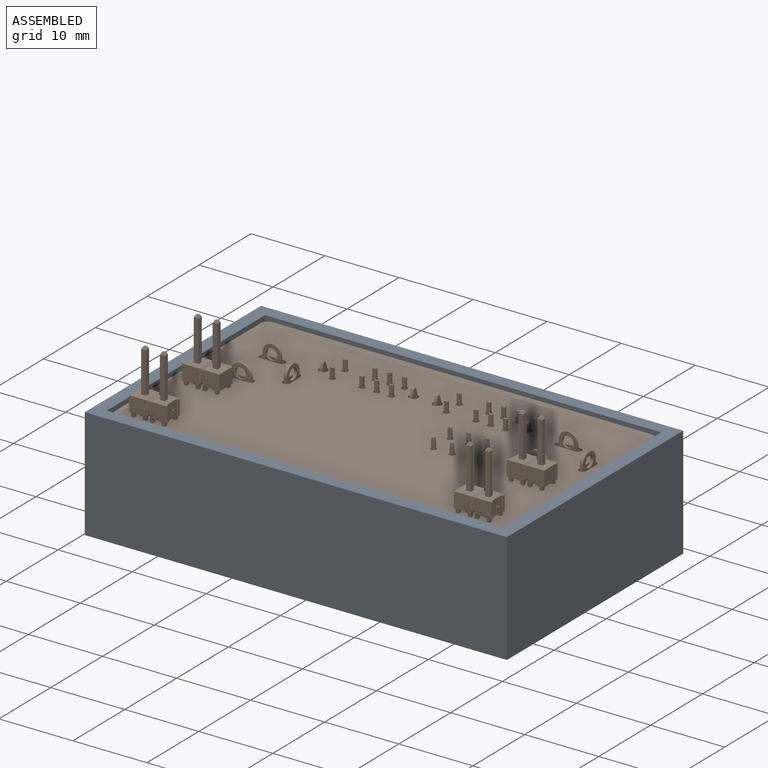
[diagram: assembled view]
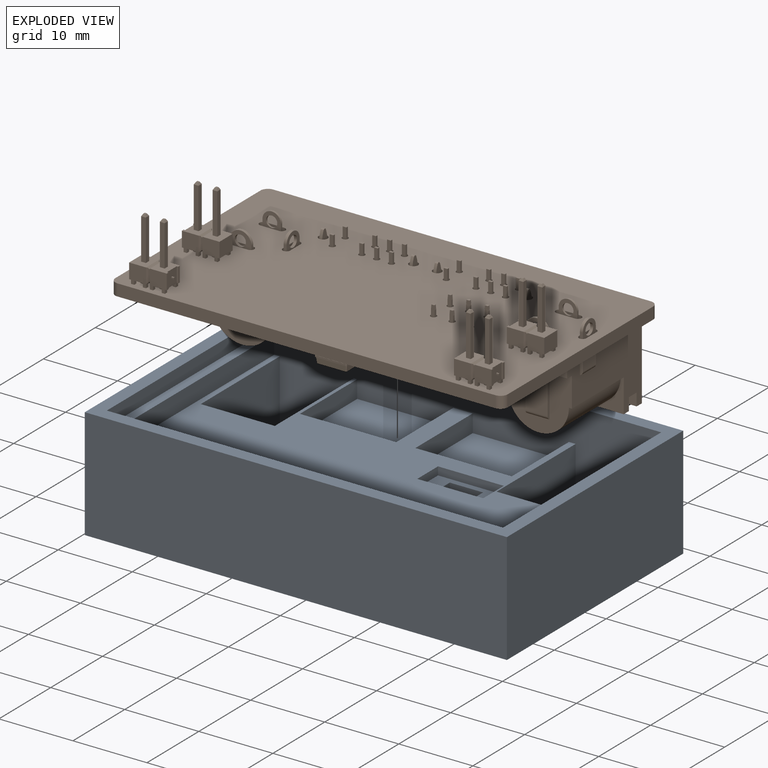
[diagram: exploded view]
GUIDED TOUR — FREECAD ASSEMBLY "Assembly2"

This assembly has 2 components, labeled P0..P1 below (a component is one placed body or linked part; the same part can appear more than once), held together by 0 modeled joints plus 1 derived contact edge. A joint is a constraint between two components; its type names the relative motion it leaves free:
  CONTACT — a derived adjacency edge — the two components touch in the source model (clearance under 2% of the assembly's diagonal); it is measured from the geometry, not a modeled constraint.
Axis/direction vectors are unit vectors and 'through' points are millimeter coordinates, both in the assembly's world frame.

MATES
  1. CONTACT "contact_0_1": P0 <-> P1, contact direction (0.000, 0.000, 1.000) through (25.51, 15.13, 12.98) mm (derived from contact, not a modeled constraint)

ASSEMBLY ORDER
  1. P0 — the base component [order heuristic]
  2. P1 [order heuristic]
Order-tag legend:
  [order heuristic] — this assembly is geometrically interlocked (no collision-free removal order exists), so components are listed in mate-graph order; insertion feasibility is not verified.

Of the 2 components, 1 carries a construction recipe — the FreeCAD feature program (sketches with constraints, then the solid features that consume them) that regenerates the part from scratch, quoted from this document or from the linked companion document it references; the rest are supplied as boundary geometry only. The tour below walks the components in assembly order: each is shown spotlighted twice — in the assembled view, then in the exploded view, where a leader line traces a displaced component back to its assembled socket (components that stay in place when exploded have no leader line; saturated green if recipe-attached, orange if geometry-only; every other component desaturated gray) — followed by its recipe or geometry summary and the mates that hold it.
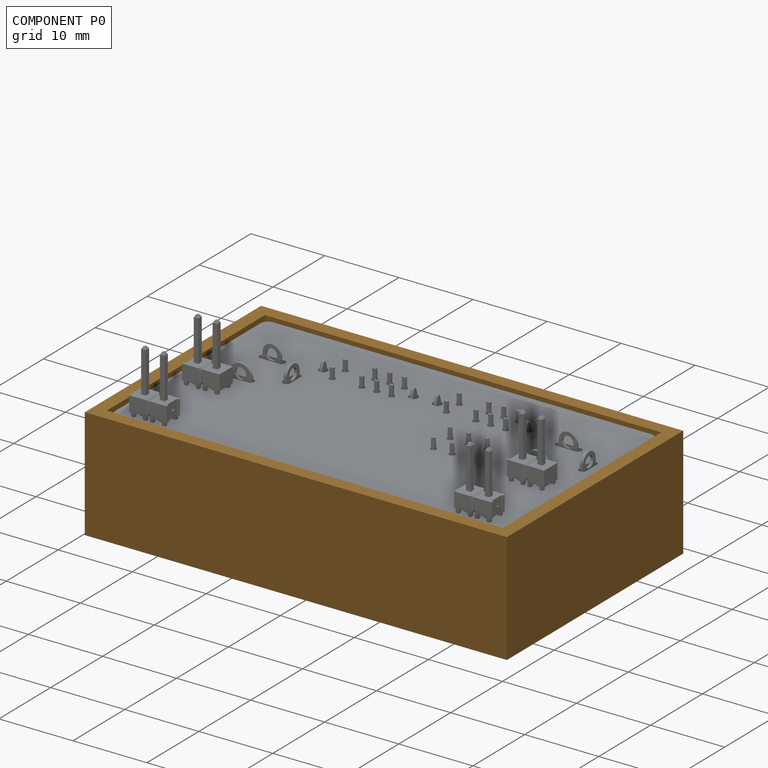
[diagram: component P0 — assembled]
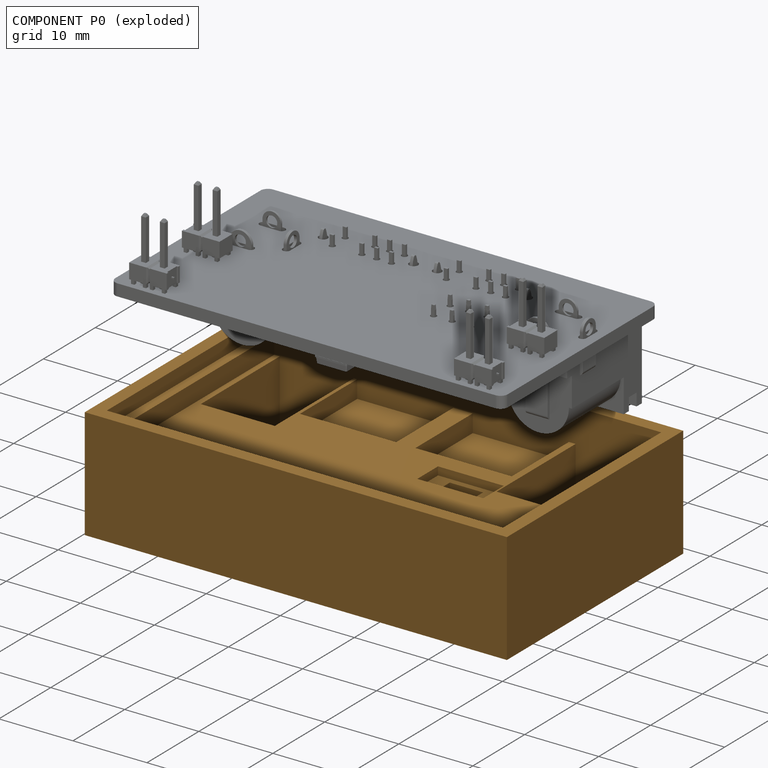
[diagram: component P0 — exploded]
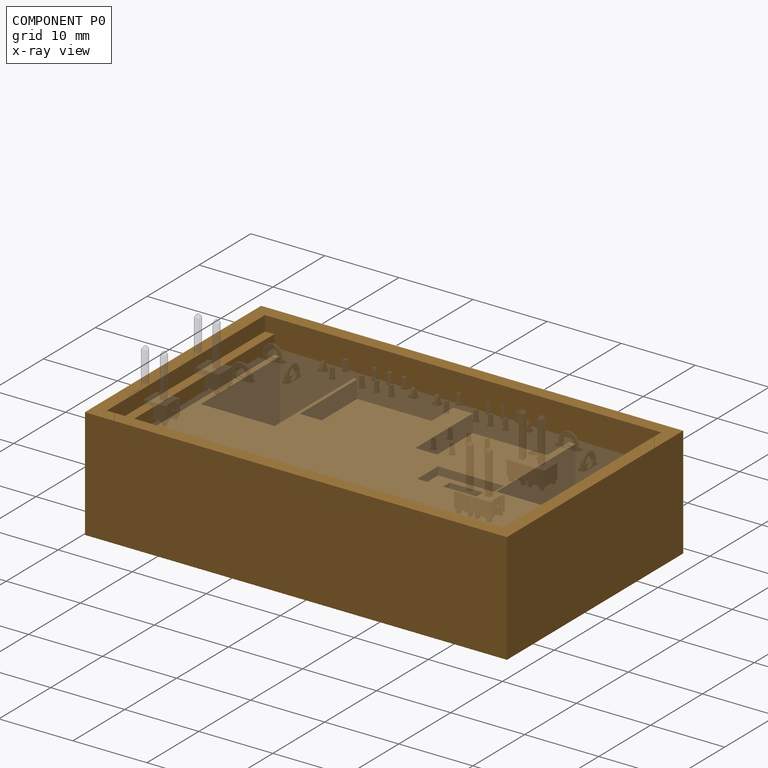
[diagram: component P0 — x-ray view]
COMPONENT P0 — geometry summary ("Body"; no construction recipe available for this part):
  bounding box: 57.0 x 34.0 x 15.0 mm
  tessellated surface: 156 triangles
  volume: 18628 mm^3 (64% of its bounding box)
Held by: resting contact with P1 (derived edge).
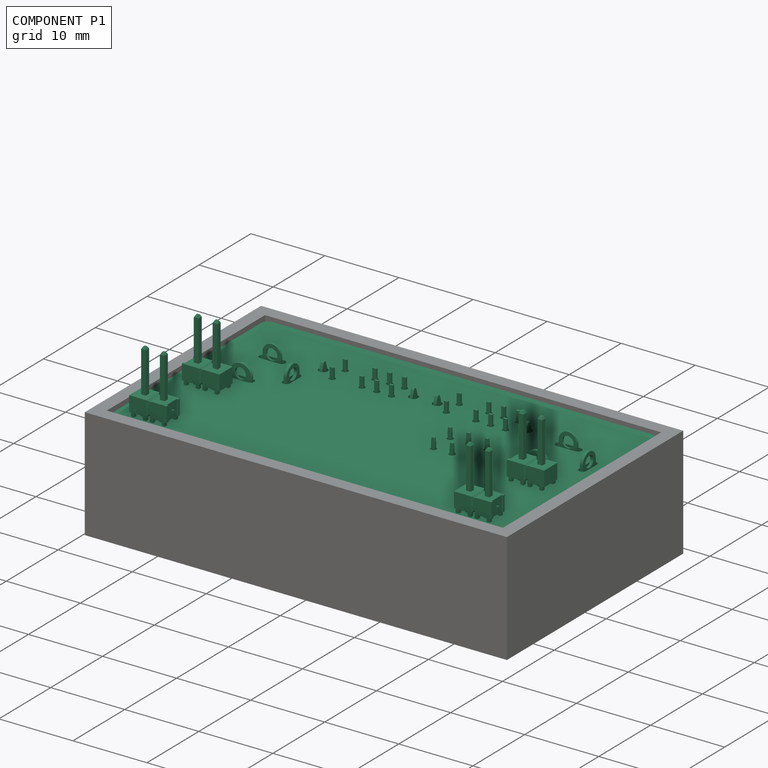
[diagram: component P1 — assembled]
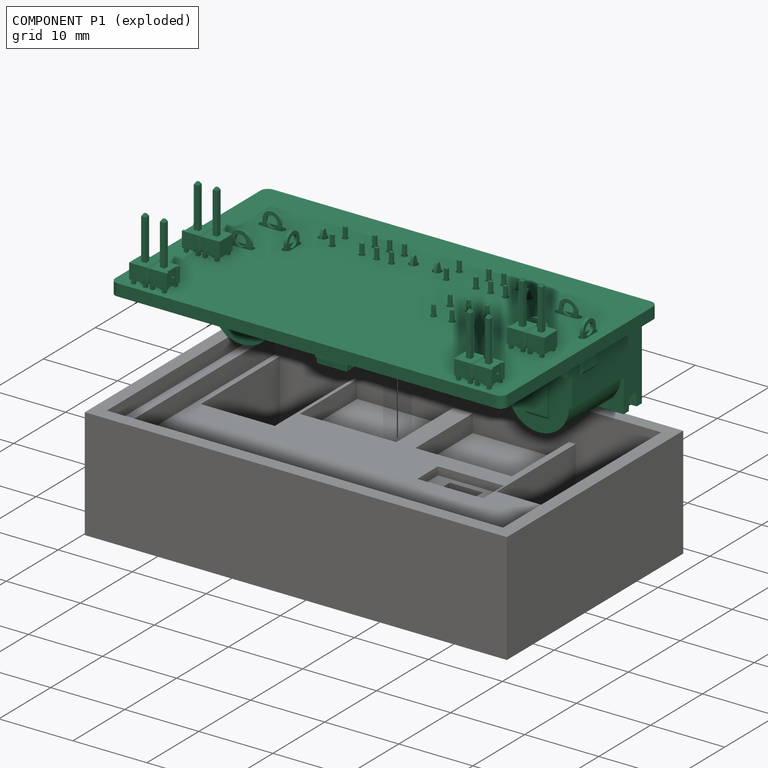
[diagram: component P1 — exploded]
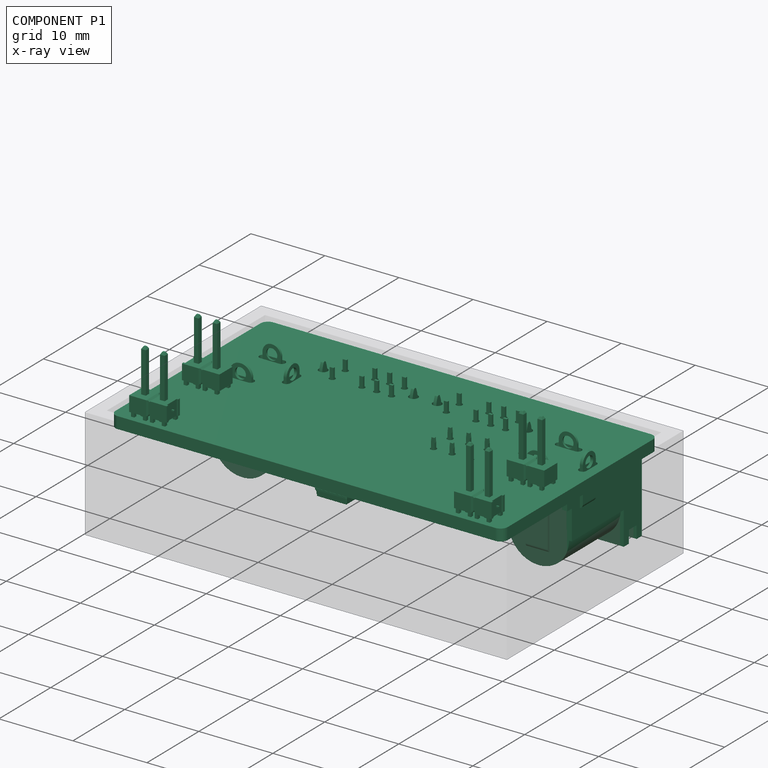
[diagram: component P1 — x-ray view]
COMPONENT P1 — recipe-attached ("breadboard-power-supply", a linked part whose construction recipe lives in a companion FreeCAD document of the same project; that document's serialized recipe follows).
Held by: resting contact with P0 (derived edge).
Construction recipe (the companion document, serialized — sketch geometry with constraints, then the solid features built on it; lengths are millimeters unless a unit is written):

FCSTD DOCUMENT  (FreeCAD 1.0R39109 (Git))
Label: breadboard-power-supply
License: All rights reserved
LicenseURL: https://en.wikipedia.org/wiki/All_rights_reserved
objects: Part::Feature×27, App::Part×13, App::Link×11, PartDesign::CoordinateSystem×1, Sketcher::SketchObject×1
note: 30 computed .brp shape members not serialized (recipe doc carries the construction recipe); baked Part::Feature solids carry a one-line shape summary decoded from their .brp

FEATURE [PartDesign::CoordinateSystem] Local_CS_8d0f
  AttacherType = Attacher::AttachEngine3D
  MapMode = 2
FEATURE [Part::Feature] Pcb_8d0f
  shape: bbox 53 x 30 x 1.6 mm, 80 faces (baked)
FEATURE [Sketcher::SketchObject] PCB_Sketch_8d0f
  ArcFitTolerance = 1e-06
  FullyConstrained = false
  MakeInternals = false
  sketch-geometry (8):
    g0: LineSegment StartX=101 StartY=-90 StartZ=0 EndX=152 EndY=-90 EndZ=0
    g1: LineSegment StartX=152 StartY=-120 StartZ=0 EndX=101 EndY=-120 EndZ=0
    g2: LineSegment StartX=100 StartY=-119 StartZ=0 EndX=100 EndY=-91 EndZ=0
    g3: LineSegment StartX=153 StartY=-91 StartZ=0 EndX=153 EndY=-119 EndZ=0
    g4: ArcOfCircle CenterX=152 CenterY=-91 CenterZ=0 NormalX=0 NormalY=0 NormalZ=-1 AngleXU=1.5708 Radius=0.999999 StartAngle=0 EndAngle=1.5708
    g5: ArcOfCircle CenterX=101 CenterY=-119 CenterZ=0 NormalX=0 NormalY=0 NormalZ=-1 AngleXU=-1.5708 Radius=0.999999 StartAngle=0 EndAngle=1.5708
    g6: ArcOfCircle CenterX=101 CenterY=-91 CenterZ=0 NormalX=0 NormalY=0 NormalZ=-1 AngleXU=-7.47076e-07 Radius=0.999999 StartAngle=0 EndAngle=1.5708
    g7: ArcOfCircle CenterX=152 CenterY=-119 CenterZ=0 NormalX=0 NormalY=0 NormalZ=-1 AngleXU=3.14159 Radius=0.999999 StartAngle=0 EndAngle=1.5708
  constraints (8):
    c: Coincident(g2,g5)
    c: Coincident(g2,g6)
    c: Coincident(g1,g5)
    c: Coincident(g0,g6)
    c: Coincident(g1,g7)
    c: Coincident(g0,g4)
    c: Coincident(g3,g7)
    c: Coincident(g3,g4)
FEATURE [App::Part] Board_Geoms_8d0f
  Group = -> [Pcb_8d0f,PCB_Sketch_8d0f]
  Origin = -> Origin
FEATURE [Part::Feature] Part__Feature  label="LF 736"
  Placement = pos=(1.69926,2.64276,4.10843) rot=(0,0,1;0rad)
  shape: bbox 1.62 x 1.275 x 1.5 mm, 25 faces (baked)
FEATURE [Part::Feature] Part__Feature001  label="LF 737"
  Placement = pos=(1.69926,2.64276,4.10843) rot=(0,0,1;0rad)
  shape: bbox 3.12 x 1.275 x 1.78 mm, 27 faces (baked)
FEATURE [App::Part] LF_736  label="LF 738"
  Group = -> [Part__Feature,Part__Feature001]
  Origin = -> Origin008
FEATURE [Part::Feature] Part__Feature002  label="Die 35mil 270um"
  Placement = pos=(1.69926,2.97276,4.10843) rot=(1,0,0;1.5708rad)
  shape: bbox 0.89 x 0.3 x 0.89 mm, 6 faces (baked)
FEATURE [Part::Feature] Part__Feature003  label="Clip553 670"
  Placement = pos=(1.69926,3.15276,4.10843) rot=(0,0,1;0rad)
  shape: bbox 2.25 x 0.704 x 1.5 mm, 32 faces (baked)
FEATURE [Part::Feature] Part__Feature004  label="Áã¼þ2^B1100"
  Placement = pos=(1.69926,2.64276,4.10843) rot=(-1,0,0;1.5708rad)
  shape: bbox 0.91 x 0.03 x 0.91 mm, 6 faces (baked)
FEATURE [Part::Feature] Part__Feature005  label="Áã¼þ2^B1101"
  Placement = pos=(1.69926,2.64276,4.10843) rot=(-1,0,0;1.5708rad)
  shape: bbox 0.46 x 0.03 x 0.46 mm, 6 faces (baked)
FEATURE [Part::Feature] Part__Feature006  label="Áã¼þ2^B1102"
  Placement = pos=(1.69926,2.64276,4.10843) rot=(-1,0,0;1.5708rad)
  shape: bbox 0.3846 x 0.205 x 1.2 mm, 8 faces (baked)
FEATURE [App::Part] ________2_B1100  label="Áã¼þ2^B1103"
  Group = -> [Part__Feature004,Part__Feature005,Part__Feature006]
  Origin = -> Origin009
FEATURE [Part::Feature] Part__Feature007  label="SMA Compound 736 553 670"
  Placement = pos=(-0.14074,2.63876,2.70843) rot=(-1,0,0;1.5708rad)
  shape: bbox 4.301 x 2 x 2.8 mm, 146 faces (baked)
FEATURE [App::Part] new_SMA_20R  label="D2_new SMA 20R_0952939a186b"
  Group = -> [LF_736,Part__Feature002,Part__Feature003,________2_B1100,Part__Feature007]
  Origin = -> Origin010
  Placement = pos=(128.39,-107.8,-1.6) rot=(0.57735,0.57735,0.57735;2.0944rad)
FEATURE [Part::Feature] Part__Feature008  label="EG1271--3DModel-STEP-520916"
  Placement = pos=(-0.95,3.3,1e-16) rot=(-1,0,0;1.5708rad)
  shape: bbox 8.5 x 8.5 x 3.6 mm, 203 faces (baked)
FEATURE [App::Part] EG1271  label="SW1_EG1271_2816c8904585"
  Group = -> [Part__Feature008]
  Origin = -> Origin011
  Placement = pos=(116,-105.3,0) rot=(1,0,0;1.5708rad)
FEATURE [Part::Feature] Part__Feature009  label="C0805C104K5RACTU"
  shape: bbox 2.3 x 0.98 x 1.55 mm, 58 faces (baked)
FEATURE [Part::Feature] Part__Feature010  label="C0805C104K5RACTU001"
  shape: bbox 0.2279 x 0.005 x 0.4313 mm, 19 faces (baked)
FEATURE [Part::Feature] Part__Feature011  label="C0805C104K5RACTU002"
  shape: bbox 0.2279 x 0.005 x 0.5256 mm, 25 faces (baked)
FEATURE [Part::Feature] Part__Feature012  label="C0805C104K5RACTU003"
  shape: bbox 0.2279 x 0.005 x 0.2743 mm, 13 faces (baked)
FEATURE [App::Part] C0805C104K5RACTU  label="C1_C0805C104K5RACTU004_20f41c0f8bfd"
  Group = -> [Part__Feature009,Part__Feature010,Part__Feature011,Part__Feature012]
  Origin = -> Origin012
  Placement = pos=(120.9,-103.75,0) rot=(0.57735,-0.57735,-0.57735;2.0944rad)
FEATURE [App::Link] D2_new_SMA_20R_0952939a186b_ln_  label="D1_new SMA 20R_7dfb9a78bb62"
  LinkPlacement = pos=(122.5,-108.69,-1.6) rot=(1,0,0;1.5708rad)
  LinkedObject = -> new_SMA_20R
  Placement = pos=(122.5,-108.69,-1.6) rot=(1,0,0;1.5708rad)
FEATURE [Part::Feature] Shape  label="SW3_EG2315_80b6656eb97f"
  Placement = pos=(134.2,-97.05,-3) rot=(0,0,1;3.14159rad)
  shape: bbox 12.6 x 10.3 x 7.8 mm, 150 faces (baked)
FEATURE [Part::Feature] Part__Feature013  label="RCS0805120RFKEA"
  shape: bbox 1.95 x 0.45 x 1.25 mm, 6 faces (baked)
FEATURE [Part::Feature] Part__Feature014  label="RCS0805120RFKEA001"
  shape: bbox 1.4 x 0.025 x 1.25 mm, 6 faces (baked)
FEATURE [Part::Feature] Part__Feature015  label="RCS0805120RFKEA002"
  shape: bbox 0.3 x 0.5 x 1.25 mm, 14 faces (baked)
FEATURE [Part::Feature] Part__Feature016  label="RCS0805120RFKEA003"
  shape: bbox 0.3 x 0.5 x 1.25 mm, 14 faces (baked)
FEATURE [App::Part] RCS0805120RFKEA  label="R2_RCS0805120RFKEA004_a3deb157f018"
  Group = -> [Part__Feature013,Part__Feature014,Part__Feature015,Part__Feature016]
  Origin = -> Origin013
  Placement = pos=(113.87,-101.6,0) rot=(0,0.707107,0.707107;3.14159rad)
FEATURE [App::Link] C1_C0805C104K5RACTU004_20f41c0f8bfd_ln_  label="C3_C0805C104K5RACTU004_ad2479d6b090"
  LinkPlacement = pos=(136.3,-104.05,0) rot=(0.57735,0.57735,0.57735;2.0944rad)
  LinkedObject = -> C0805C104K5RACTU
  Placement = pos=(136.3,-104.05,0) rot=(0.57735,0.57735,0.57735;2.0944rad)
FEATURE [App::Link] R2_RCS0805120RFKEA004_a3deb157f018_ln_  label="R1_RCS0805120RFKEA004_754ceaad8c13"
  LinkPlacement = pos=(135.5,-107.45,0) rot=(0.57735,0.57735,0.57735;2.0944rad)
  LinkedObject = -> RCS0805120RFKEA
  Placement = pos=(135.5,-107.45,0) rot=(0.57735,0.57735,0.57735;2.0944rad)
FEATURE [Part::Feature] Shape001  label="J1_CUI_DEVICES_PJ-002A_55e8efef0c78"
  Placement = pos=(106.5,-90.3,6.5) rot=(0.57735,0.57735,0.57735;2.0944rad)
  shape: bbox 9.4 x 14.4 x 14.5 mm, 57 faces (baked)
FEATURE [App::Link] SW3_EG2315_80b6656eb97f_ln_  label="SW2_EG2315_f7c61ab64d1e"
  LinkPlacement = pos=(118.8,-97.05,-3) rot=(0,0,1;3.14159rad)
  LinkedObject = -> Shape
  Placement = pos=(118.8,-97.05,-3) rot=(0,0,1;3.14159rad)
FEATURE [Part::Feature] Part__Feature017  label="BODY-SOT"
  Placement = pos=(0,0,0.7874) rot=(0.57735,-0.57735,-0.57735;2.0944rad)
  shape: bbox 3.5 x 6.5 x 1.6 mm, 14 faces (baked)
FEATURE [Part::Feature] Part__Feature018  label="LEAD-SOT"
  Placement = pos=(-2.7498,-2.2438,0.25) rot=(0.57735,-0.57735,-0.57735;2.0944rad)
  shape: bbox 1.75 x 0.75 x 0.7874 mm, 14 faces (baked)
FEATURE [Part::Feature] Part__Feature019  label="LEAD-SOT001"
  Placement = pos=(-2.7498,0.0562,0.25) rot=(0.57735,-0.57735,-0.57735;2.0944rad)
  shape: bbox 1.75 x 0.75 x 0.7874 mm, 14 faces (baked)
FEATURE [Part::Feature] Part__Feature020  label="LEAD-SOT002"
  Placement = pos=(-2.7498,2.3562,0.25) rot=(0.57735,-0.57735,-0.57735;2.0944rad)
  shape: bbox 1.75 x 0.75 x 0.7874 mm, 14 faces (baked)
FEATURE [Part::Feature] Part__Feature021  label="LEAD-SOT-WIDE"
  Placement = pos=(2.7498,0.0026,0.25) rot=(0.57735,0.57735,0.57735;2.0944rad)
  shape: bbox 1.75 x 3 x 0.7874 mm, 14 faces (baked)
FEATURE [App::Part] DCY0004A_ASM  label="U1_DCY0004A_ASM_2dbe2f4dbc05"
  Group = -> [Part__Feature017,Part__Feature018,Part__Feature019,Part__Feature020,Part__Feature021]
  Origin = -> Origin014
  Placement = pos=(126.5,-105.8,0) rot=(0,0,-1;1.5708rad)
FEATURE [App::Link] R2_RCS0805120RFKEA004_a3deb157f018_ln_001  label="R3_RCS0805120RFKEA004_74bbc2b843f3"
  LinkPlacement = pos=(117.73,-101.6,0) rot=(1,0,0;1.5708rad)
  LinkedObject = -> RCS0805120RFKEA
  Placement = pos=(117.73,-101.6,0) rot=(1,0,0;1.5708rad)
FEATURE [App::Link] J1_CUI_DEVICES_PJ_002A_55e8efef0c78_ln_  label="J2_CUI_DEVICES_PJ-002A_d9c951ac5020"
  LinkPlacement = pos=(146.5,-90.3,6.5) rot=(0.57735,0.57735,0.57735;2.0944rad)
  LinkedObject = -> Shape001
  Placement = pos=(146.5,-90.3,6.5) rot=(0.57735,0.57735,0.57735;2.0944rad)
FEATURE [App::Link] C1_C0805C104K5RACTU004_20f41c0f8bfd_ln_001  label="C2_C0805C104K5RACTU004_f27700a97261"
  LinkPlacement = pos=(131.65,-110.7,0) rot=(0,0.707107,0.707107;3.14159rad)
  LinkedObject = -> C0805C104K5RACTU
  Placement = pos=(131.65,-110.7,0) rot=(0,0.707107,0.707107;3.14159rad)
FEATURE [App::Link] D2_new_SMA_20R_0952939a186b_ln_001  label="D3_new SMA 20R_0e3b2a965611"
  LinkPlacement = pos=(122.5,-112.69,-1.6) rot=(1,0,0;1.5708rad)
  LinkedObject = -> new_SMA_20R
  Placement = pos=(122.5,-112.69,-1.6) rot=(1,0,0;1.5708rad)
FEATURE [App::Part] Top_8d0f
  Group = -> [new_SMA_20R,EG1271,C0805C104K5RACTU,D2_new_SMA_20R_0952939a186b_ln_,Shape,RCS0805120RFKEA,C1_C0805C104K5RACTU004_20f41c0f8bfd_ln_,R2_RCS0805120RFKEA004_a3deb157f018_ln_,Shape001,SW3_EG2315_80b6656eb97f_ln_,DCY0004A_ASM,R2_RCS0805120RFKEA004_a3deb157f018_ln_001,J1_CUI_DEVICES_PJ_002A_55e8efef0c78_ln_,C1_C0805C104K5RACTU004_20f41c0f8bfd_ln_001,D2_new_SMA_20R_0952939a186b_ln_001]
  Origin = -> Origin003
FEATURE [Part::Feature] Part__Feature022  label="TSW-102-07-F-S_body"
  shape: bbox 5.207 x 2.54 x 2.54 mm, 69 faces (baked)
FEATURE [Part::Feature] Part__Feature023  label="T-1S6-07-TSW-1-07-2-S"
  Placement = pos=(0,-2.54,0) rot=(0,0,1;0rad)
  shape: bbox 3.429 x 10.92 x 0.889 mm, 38 faces (baked)
FEATURE [App::Part] TSW_102_07_F_S  label="J6_TSW-102-07-F-S_af2df57303ab"
  Group = -> [Part__Feature022,Part__Feature023]
  Origin = -> Origin015
  Placement = pos=(148.43,-117.97,-1.6) rot=(-1,0,0;1.5708rad)
FEATURE [App::Link] J6_TSW_102_07_F_S_af2df57303ab_ln_  label="J3_TSW-102-07-F-S_91d19b5af423"
  LinkPlacement = pos=(104.57,-107.81,-1.6) rot=(0,0.707107,-0.707107;3.14159rad)
  LinkedObject = -> TSW_102_07_F_S
  Placement = pos=(104.57,-107.81,-1.6) rot=(0,0.707107,-0.707107;3.14159rad)
FEATURE [App::Link] J6_TSW_102_07_F_S_af2df57303ab_ln_001  label="J4_TSW-102-07-F-S_3f57c38ca013"
  LinkPlacement = pos=(104.57,-117.97,-1.6) rot=(-1,0,0;1.5708rad)
  LinkedObject = -> TSW_102_07_F_S
  Placement = pos=(104.57,-117.97,-1.6) rot=(-1,0,0;1.5708rad)
FEATURE [App::Link] J6_TSW_102_07_F_S_af2df57303ab_ln_002  label="J5_TSW-102-07-F-S_f7e907fcc812"
  LinkPlacement = pos=(148.43,-107.81,-1.6) rot=(0,0.707107,-0.707107;3.14159rad)
  LinkedObject = -> TSW_102_07_F_S
  Placement = pos=(148.43,-107.81,-1.6) rot=(0,0.707107,-0.707107;3.14159rad)
FEATURE [App::Part] Bot_8d0f
  Group = -> [TSW_102_07_F_S,J6_TSW_102_07_F_S_af2df57303ab_ln_,J6_TSW_102_07_F_S_af2df57303ab_ln_001,J6_TSW_102_07_F_S_af2df57303ab_ln_002]
  Origin = -> Origin004
FEATURE [App::Part] Step_Models_8d0f
  Group = -> [Top_8d0f,Bot_8d0f]
  Origin = -> Origin002
FEATURE [App::Part] Board_8d0f  label="breadboard-power-supply"
  Group = -> [Local_CS_8d0f,Board_Geoms_8d0f,Step_Models_8d0f]
  Origin = -> Origin001
PROVENANCE & LICENSES
Assembly and component geometry: a FreeCAD (.FCStd) document from a public repository crawl; components, placements and joints were extracted with FreeCAD and each solid tessellated.
Construction recipes: the document's own serialized feature recipes (and, for linked parts, the recipes of companion documents from the same project).
License: cern-ohl.
Joints: native FreeCAD joints and A2plus constraints are mapped to standard mate types; edges marked 'derived from contact' connect touching components and are measured from the geometry, not modeled.
Verification: 1 of this assembly's 2 components carries a construction recipe (1 from linked companion documents in the same project); the rest are geometry-only. Every component's tessellation passed the extraction mesh gates (mesh-volume checksum against the B-rep where available, bounding-box inflation <= 2%).
Renders: orthographic iso camera (az 35 / el 25); the floor grid conveys scale (grid pitch printed in each image; no ruler). In the exploded view each component is displaced by its stored offset vector: the offsets alone carry the explosion direction (mate normal/axis signs are not orientation cues and do not encode it), and separation distances are assigned per mate-chain, not proportionally to assembly-order depth.
